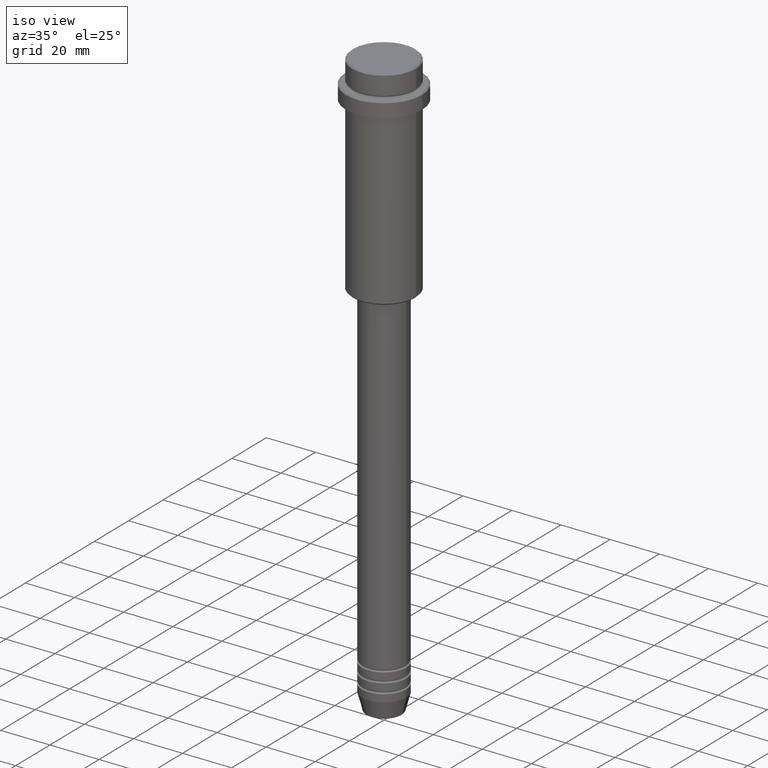
[diagram: clean part render]
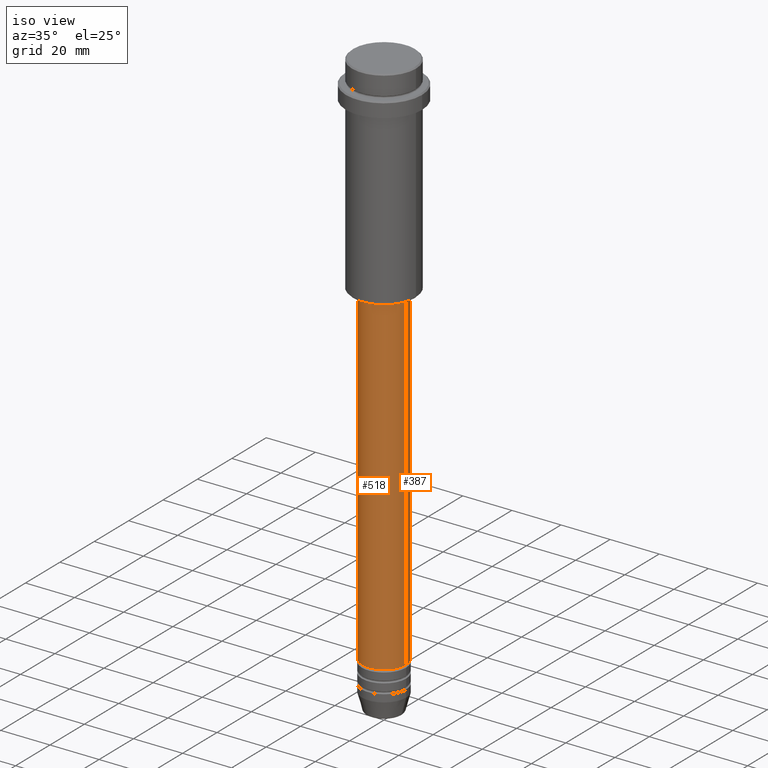
[diagram: same view with one multi-face feature highlighted, each face labeled with its STEP entity id]
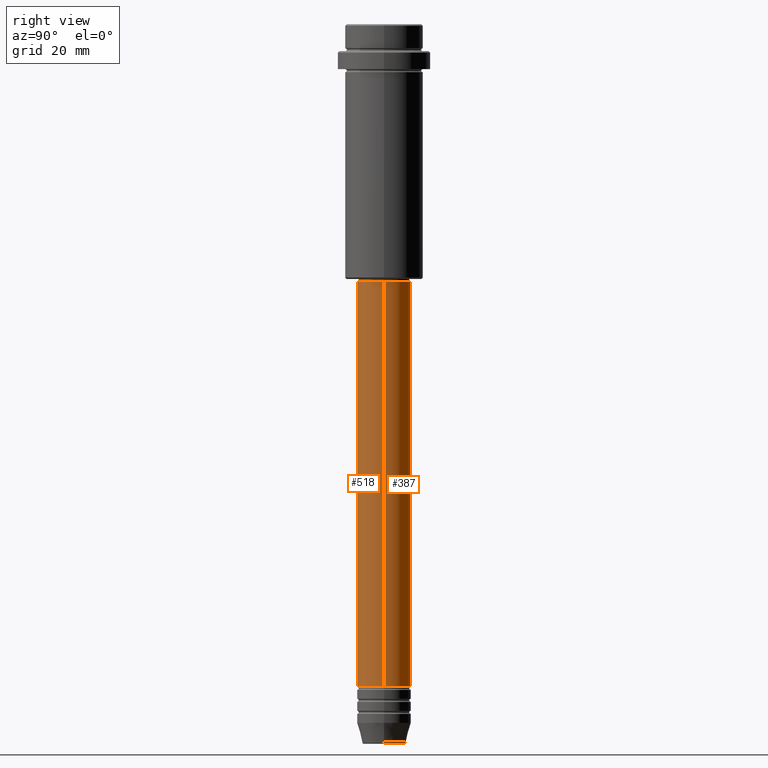
[diagram: same view with one multi-face feature highlighted, each face labeled with its STEP entity id]
A machine part, iso view. The highlighted faces form ONE feature: a constant-radius fillet chain: 2 tangent blend faces with common blend radius 9 mm. The faces share edges in the B-rep.
A second angle (right view) of the same feature is appended — it is thin or edge-on in the first view.
Their STEP definitions:
[1] entity #518 (Cylinder):
#29 = LINE ( 'NONE', #1036, #608 ) ;
#51 = CARTESIAN_POINT ( 'NONE',  ( 0.000000000000000000, 0.000000000000000000, -86.00000000000000000 ) ) ;
#58 = AXIS2_PLACEMENT_3D ( 'NONE', #1402, #546, #437 ) ;
#62 = VERTEX_POINT ( 'NONE', #233 ) ;
#94 = CYLINDRICAL_SURFACE ( 'NONE', #1297, 9.000000000000001776 ) ;
#100 = CARTESIAN_POINT ( 'NONE',  ( 9.000000000000001776, 0.000000000000000000, 0.000000000000000000 ) ) ;
#142 = ORIENTED_EDGE ( 'NONE', *, *, #578, .T. ) ;
#164 = DIRECTION ( 'NONE',  ( -0.000000000000000000, -0.000000000000000000, 1.000000000000000000 ) ) ;
#173 = VECTOR ( 'NONE', #1098, 1000.000000000000000 ) ;
#192 = CARTESIAN_POINT ( 'NONE',  ( 9.000000000000001776, 0.000000000000000000, -86.00000000000000000 ) ) ;
#233 = CARTESIAN_POINT ( 'NONE',  ( -9.000000000000000000, 1.102182119232617714E-15, -220.9999999999998863 ) ) ;
#290 = VERTEX_POINT ( 'NONE', #801 ) ;
#295 = ORIENTED_EDGE ( 'NONE', *, *, #426, .F. ) ;
#296 = CARTESIAN_POINT ( 'NONE',  ( 0.000000000000000000, 0.000000000000000000, 0.000000000000000000 ) ) ;
#419 = DIRECTION ( 'NONE',  ( -0.000000000000000000, -0.000000000000000000, 1.000000000000000000 ) ) ;
#426 = EDGE_CURVE ( 'NONE', #1168, #581, #953, .T. ) ;
#437 = DIRECTION ( 'NONE',  ( 1.000000000000000000, 0.000000000000000000, 0.000000000000000000 ) ) ;
#518 = ADVANCED_FACE ( 'NONE', ( #756 ), #94, .T. ) ;
#546 = DIRECTION ( 'NONE',  ( -0.000000000000000000, -0.000000000000000000, 1.000000000000000000 ) ) ;
#561 = EDGE_CURVE ( 'NONE', #290, #581, #645, .T. ) ;
#574 = DIRECTION ( 'NONE',  ( -0.000000000000000000, -0.000000000000000000, 1.000000000000000000 ) ) ;
#578 = EDGE_CURVE ( 'NONE', #62, #290, #1023, .T. ) ;
#581 = VERTEX_POINT ( 'NONE', #192 ) ;
#608 = VECTOR ( 'NONE', #574, 1000.000000000000000 ) ;
#616 = DIRECTION ( 'NONE',  ( 1.000000000000000000, 0.000000000000000000, 0.000000000000000000 ) ) ;
#645 = LINE ( 'NONE', #100, #173 ) ;
#652 = DIRECTION ( 'NONE',  ( 1.000000000000000000, 0.000000000000000000, 0.000000000000000000 ) ) ;
#727 = EDGE_LOOP ( 'NONE', ( #1298, #142, #977, #295 ) ) ;
#756 = FACE_OUTER_BOUND ( 'NONE', #727, .T. ) ;
#801 = CARTESIAN_POINT ( 'NONE',  ( 9.000000000000000000, 0.000000000000000000, -220.9999999999998863 ) ) ;
#885 = AXIS2_PLACEMENT_3D ( 'NONE', #51, #164, #616 ) ;
#953 = CIRCLE ( 'NONE', #885, 9.000000000000001776 ) ;
#977 = ORIENTED_EDGE ( 'NONE', *, *, #561, .T. ) ;
#1023 = CIRCLE ( 'NONE', #58, 9.000000000000000000 ) ;
#1036 = CARTESIAN_POINT ( 'NONE',  ( -9.000000000000001776, 1.102182119232617911E-15, 0.000000000000000000 ) ) ;
#1098 = DIRECTION ( 'NONE',  ( -0.000000000000000000, -0.000000000000000000, 1.000000000000000000 ) ) ;
#1168 = VERTEX_POINT ( 'NONE', #1249 ) ;
#1189 = EDGE_CURVE ( 'NONE', #62, #1168, #29, .T. ) ;
#1249 = CARTESIAN_POINT ( 'NONE',  ( -9.000000000000001776, 1.102182119232617911E-15, -86.00000000000000000 ) ) ;
#1297 = AXIS2_PLACEMENT_3D ( 'NONE', #296, #419, #652 ) ;
#1298 = ORIENTED_EDGE ( 'NONE', *, *, #1189, .F. ) ;
#1402 = CARTESIAN_POINT ( 'NONE',  ( 0.000000000000000000, 0.000000000000000000, -220.9999999999998863 ) ) ;
[2] entity #387 (Cylinder):
#29 = LINE ( 'NONE', #1036, #608 ) ;
#62 = VERTEX_POINT ( 'NONE', #233 ) ;
#99 = ORIENTED_EDGE ( 'NONE', *, *, #1275, .T. ) ;
#100 = CARTESIAN_POINT ( 'NONE',  ( 9.000000000000001776, 0.000000000000000000, 0.000000000000000000 ) ) ;
#103 = AXIS2_PLACEMENT_3D ( 'NONE', #705, #958, #1035 ) ;
#169 = AXIS2_PLACEMENT_3D ( 'NONE', #1071, #1283, #503 ) ;
#173 = VECTOR ( 'NONE', #1098, 1000.000000000000000 ) ;
#192 = CARTESIAN_POINT ( 'NONE',  ( 9.000000000000001776, 0.000000000000000000, -86.00000000000000000 ) ) ;
#233 = CARTESIAN_POINT ( 'NONE',  ( -9.000000000000000000, 1.102182119232617714E-15, -220.9999999999998863 ) ) ;
#290 = VERTEX_POINT ( 'NONE', #801 ) ;
#387 = ADVANCED_FACE ( 'NONE', ( #1163 ), #1051, .T. ) ;
#410 = CARTESIAN_POINT ( 'NONE',  ( 0.000000000000000000, 0.000000000000000000, -86.00000000000000000 ) ) ;
#415 = ORIENTED_EDGE ( 'NONE', *, *, #876, .F. ) ;
#503 = DIRECTION ( 'NONE',  ( 1.000000000000000000, 0.000000000000000000, 0.000000000000000000 ) ) ;
#561 = EDGE_CURVE ( 'NONE', #290, #581, #645, .T. ) ;
#574 = DIRECTION ( 'NONE',  ( -0.000000000000000000, -0.000000000000000000, 1.000000000000000000 ) ) ;
#581 = VERTEX_POINT ( 'NONE', #192 ) ;
#608 = VECTOR ( 'NONE', #574, 1000.000000000000000 ) ;
#645 = LINE ( 'NONE', #100, #173 ) ;
#705 = CARTESIAN_POINT ( 'NONE',  ( 0.000000000000000000, 0.000000000000000000, 0.000000000000000000 ) ) ;
#707 = ORIENTED_EDGE ( 'NONE', *, *, #1189, .T. ) ;
#729 = DIRECTION ( 'NONE',  ( -0.000000000000000000, -0.000000000000000000, 1.000000000000000000 ) ) ;
#801 = CARTESIAN_POINT ( 'NONE',  ( 9.000000000000000000, 0.000000000000000000, -220.9999999999998863 ) ) ;
#876 = EDGE_CURVE ( 'NONE', #581, #1168, #1363, .T. ) ;
#939 = ORIENTED_EDGE ( 'NONE', *, *, #561, .F. ) ;
#958 = DIRECTION ( 'NONE',  ( -0.000000000000000000, -0.000000000000000000, 1.000000000000000000 ) ) ;
#1035 = DIRECTION ( 'NONE',  ( 1.000000000000000000, 0.000000000000000000, 0.000000000000000000 ) ) ;
#1036 = CARTESIAN_POINT ( 'NONE',  ( -9.000000000000001776, 1.102182119232617911E-15, 0.000000000000000000 ) ) ;
#1051 = CYLINDRICAL_SURFACE ( 'NONE', #103, 9.000000000000001776 ) ;
#1053 = DIRECTION ( 'NONE',  ( 1.000000000000000000, 0.000000000000000000, 0.000000000000000000 ) ) ;
#1071 = CARTESIAN_POINT ( 'NONE',  ( 0.000000000000000000, 0.000000000000000000, -220.9999999999998863 ) ) ;
#1098 = DIRECTION ( 'NONE',  ( -0.000000000000000000, -0.000000000000000000, 1.000000000000000000 ) ) ;
#1111 = EDGE_LOOP ( 'NONE', ( #99, #707, #415, #939 ) ) ;
#1114 = CIRCLE ( 'NONE', #169, 9.000000000000000000 ) ;
#1163 = FACE_OUTER_BOUND ( 'NONE', #1111, .T. ) ;
#1168 = VERTEX_POINT ( 'NONE', #1249 ) ;
#1189 = EDGE_CURVE ( 'NONE', #62, #1168, #29, .T. ) ;
#1249 = CARTESIAN_POINT ( 'NONE',  ( -9.000000000000001776, 1.102182119232617911E-15, -86.00000000000000000 ) ) ;
#1270 = AXIS2_PLACEMENT_3D ( 'NONE', #410, #729, #1053 ) ;
#1275 = EDGE_CURVE ( 'NONE', #290, #62, #1114, .T. ) ;
#1283 = DIRECTION ( 'NONE',  ( -0.000000000000000000, -0.000000000000000000, 1.000000000000000000 ) ) ;
#1363 = CIRCLE ( 'NONE', #1270, 9.000000000000001776 ) ;